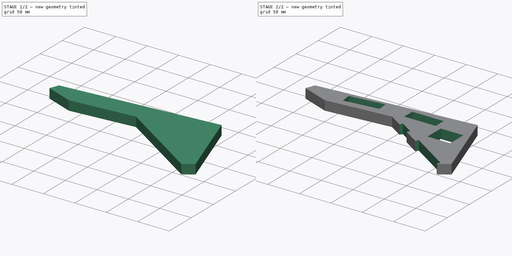
[diagram: build sequence overview — one tinted view per stage of 2, left to right]
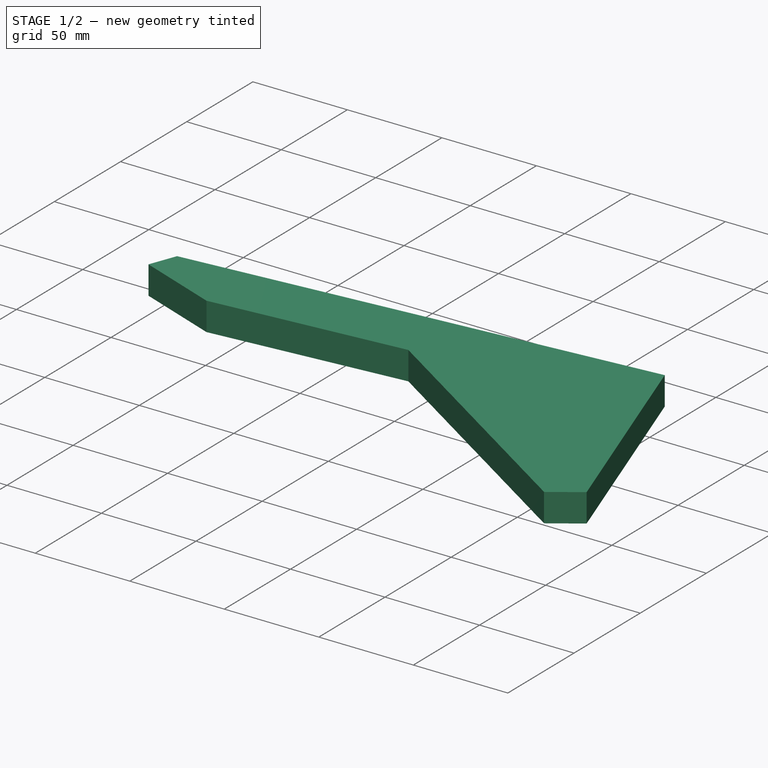
[diagram: stage 1 of 2 — iso view after this stage's code; geometry added in this stage tinted green]
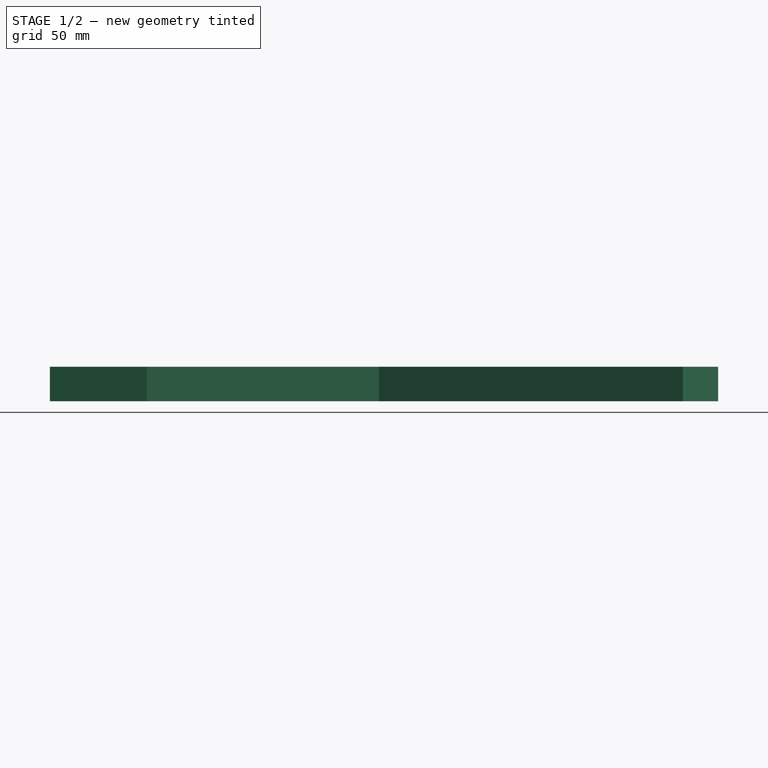
[diagram: stage 1 of 2 — front view after this stage's code; geometry added in this stage tinted green]
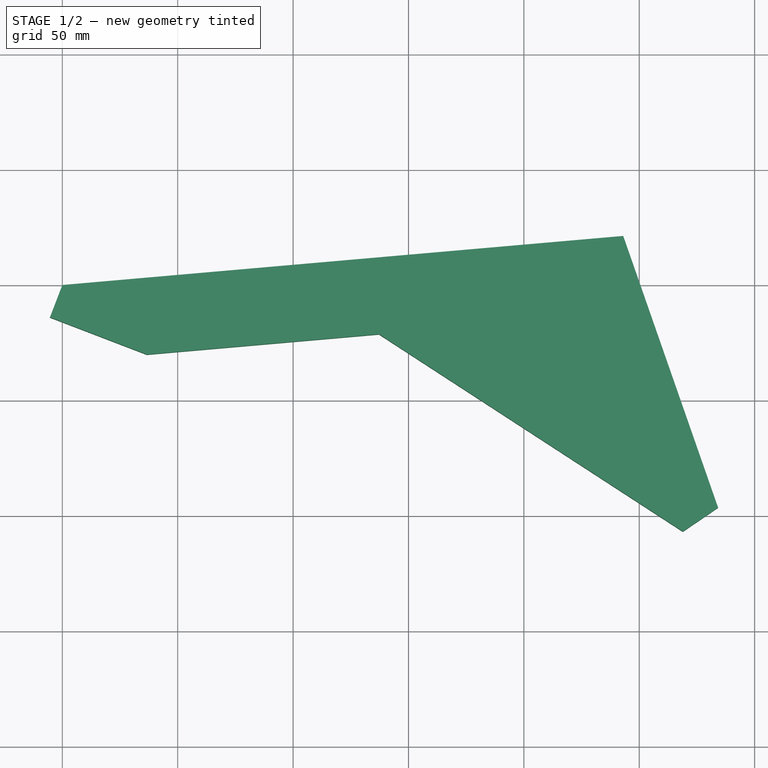
[diagram: stage 1 of 2 — top view after this stage's code; geometry added in this stage tinted green]
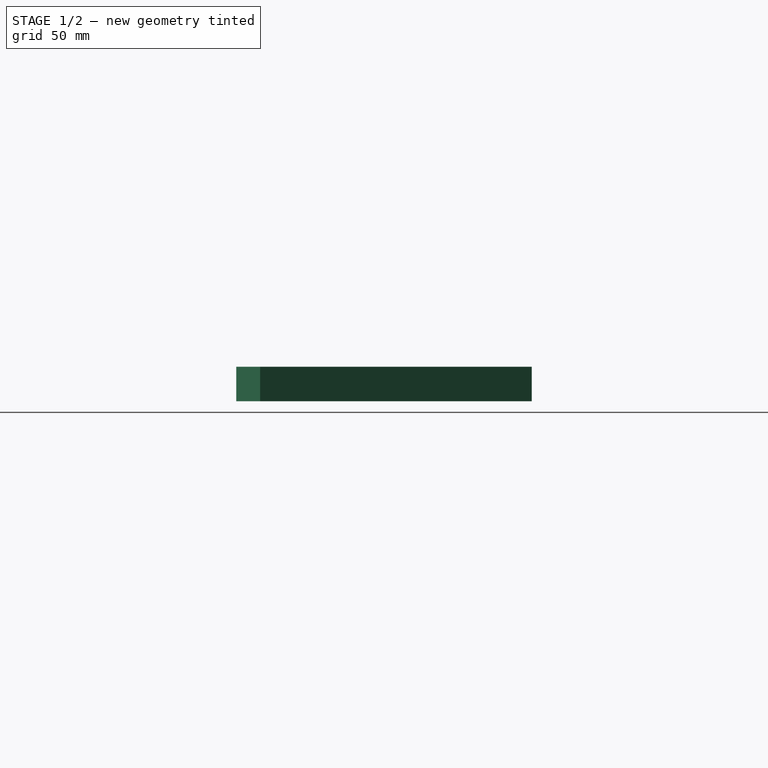
[diagram: stage 1 of 2 — right view after this stage's code; geometry added in this stage tinted green]
FCSTD DOCUMENT  (FreeCAD 2021.717R24301 +3842 (Git))
Label: iMac_MoboMount
License: All rights reserved
LicenseURL: http://en.wikipedia.org/wiki/All_rights_reserved
objects: Sketcher::SketchObject×2, PartDesign::Pad×1, PartDesign::Pocket×1, PartDesign::Body×1, App::Part×1
note: 9 computed .brp shape members not serialized (recipe doc carries the construction recipe); baked Part::Feature solids carry a one-line shape summary decoded from their .brp

FEATURE [Sketcher::SketchObject] Sketch001  label="SupportSketch"
  FullyConstrained = true
  MapMode = 2
  sketch-geometry (7):
    g0: LineSegment StartX=-5.37552 StartY=-14.0037 StartZ=0 EndX=36.6356 EndY=-30.1303 EndZ=0
    g1: LineSegment StartX=36.6356 StartY=-30.1303 StartZ=0 EndX=137.251 EndY=-21.3275 EndZ=0
    g2: LineSegment StartX=243.072 StartY=21.266 StartZ=0 EndX=0 EndY=0 EndZ=0
    g3: LineSegment StartX=0 StartY=0 StartZ=0 EndX=-5.37552 EndY=-14.0037 EndZ=0
    g4: LineSegment StartX=137.251 StartY=-21.3275 StartZ=0 EndX=268.923 EndY=-106.836 EndZ=0
    g5: LineSegment StartX=243.072 StartY=21.266 StartZ=0 EndX=284.17 EndY=-96.4561 EndZ=0
    g6: LineSegment StartX=268.923 StartY=-106.836 StartZ=0 EndX=284.17 EndY=-96.4561 EndZ=0
  constraints (20):
    c: Coincident(g2,g3)
    c: Coincident(g3,g0)
    c: Coincident(g1,g0)
    c: Coincident(g2,g-1)
    c: Distance(g2) = 244
    c: Distance(g1) = 101
    c: Distance(g3) = 15
    c: Angle(g2,g-2) = 1.48353
    c: Distance(g0) = 45
    c: Coincident(g4,g1)
    c: Distance(g4) = 157
    c: Parallel(g1,g2)
    c: Angle(g1,g0) = 2.68781
    c: Angle(g0,g3) = 1.5708
    c: Angle(g1,g4) = 2.47837
    c: Coincident(g5,g2)
    c: Coincident(g6,g4)
    c: Coincident(g6,g5)
    c: Angle(g5,g6) = 1.8326
    c: Distance(g5) = 124.69
FEATURE [PartDesign::Pad] Pad
  ClaimChildren = false
  Direction = (1,1,1)
  Fit = 0
  FitJoin = 0
  InnerFit = 0
  InnerFitJoin = 0
  InnerTaperAngle = 0
  InnerTaperAngleRev = 0
  Length = 15
  Length2 = 100
  Linearize = true
  NewSolid = false
  Profile = -> Sketch001
  Suppress = false
  Type = 0
  _ProfileBasedVersion = 1
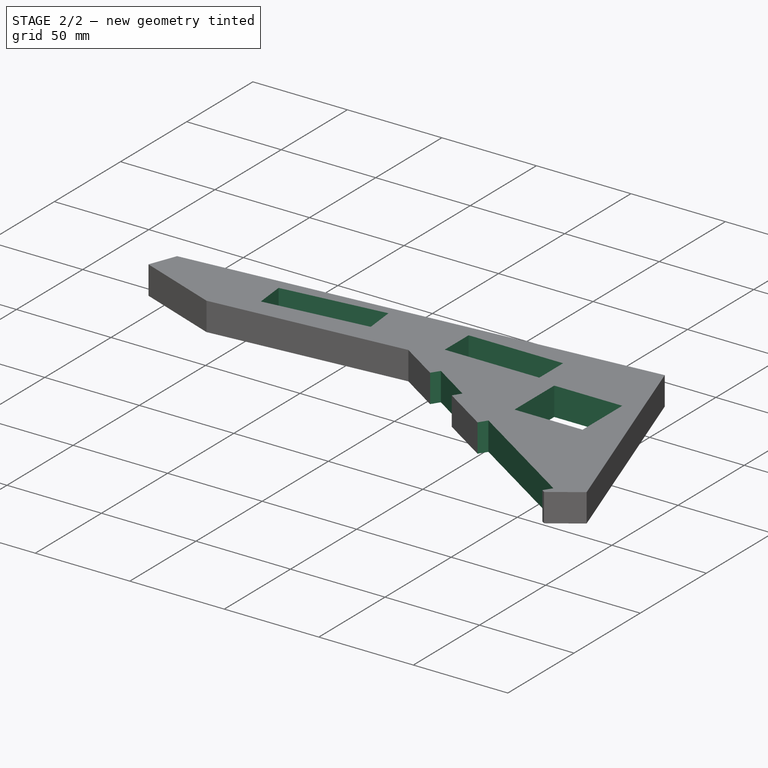
[diagram: stage 2 of 2 — iso view after this stage's code; geometry added in this stage tinted green]
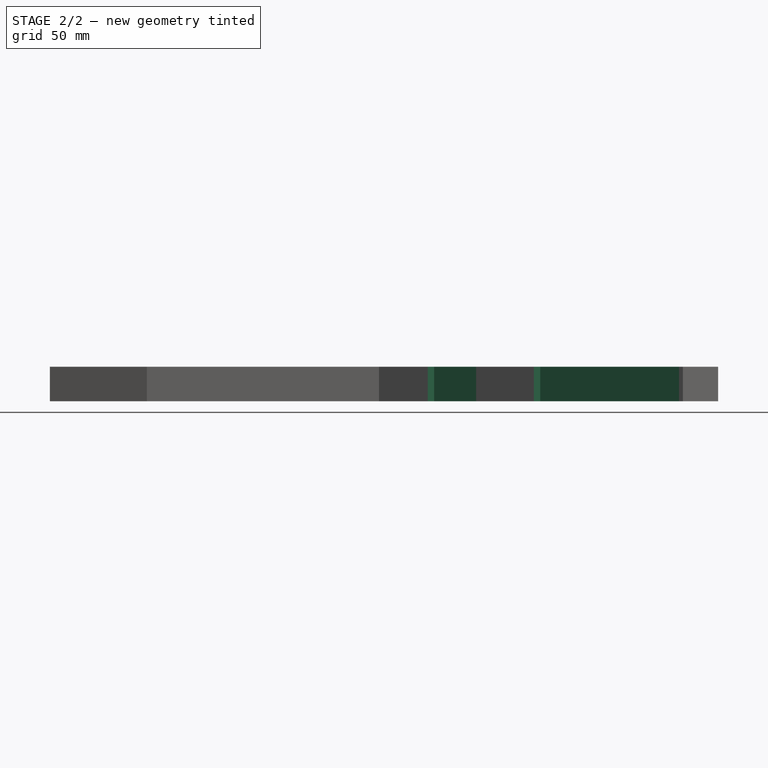
[diagram: stage 2 of 2 — front view after this stage's code; geometry added in this stage tinted green]
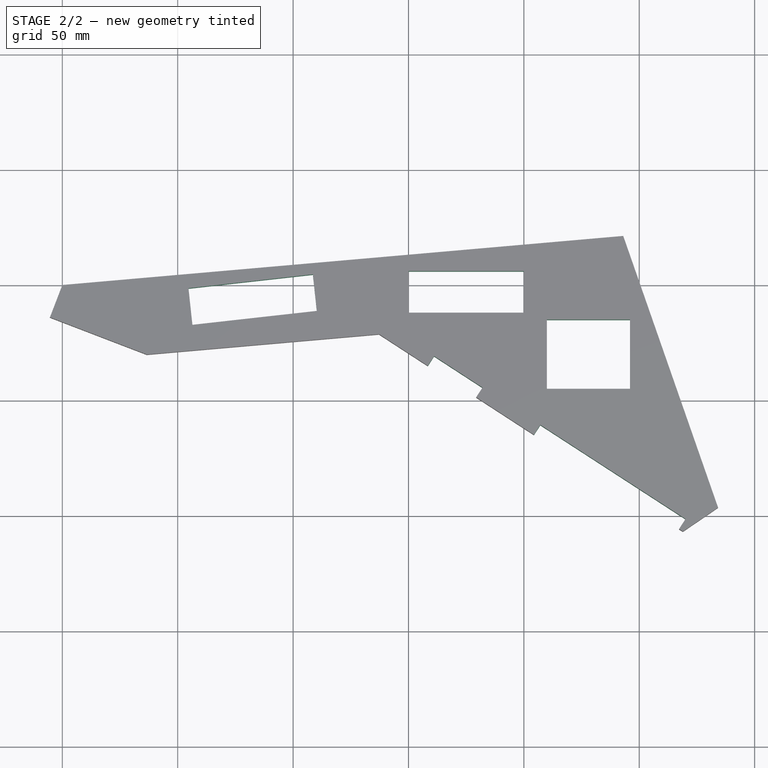
[diagram: stage 2 of 2 — top view after this stage's code; geometry added in this stage tinted green]
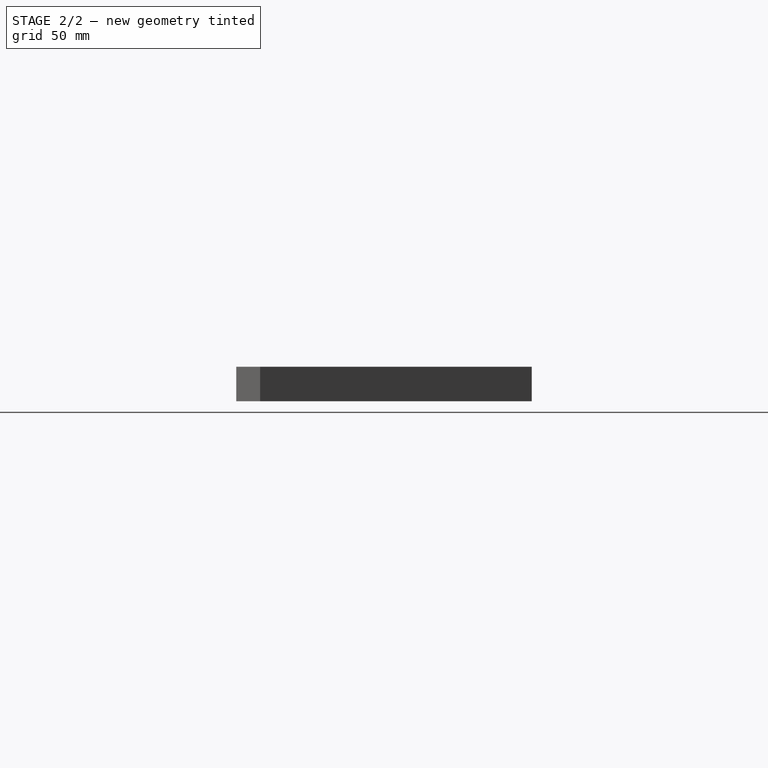
[diagram: stage 2 of 2 — right view after this stage's code; geometry added in this stage tinted green]
FEATURE [Sketcher::SketchObject] Sketch
  FullyConstrained = true
  MapMode = 5
  Placement = pos=(0,0,15) rot=(0,0,1;0rad)
  Support = -> [Pad]
  sketch-geometry (22):
    g0: LineSegment StartX=210 StartY=-15 StartZ=0 EndX=246 EndY=-15 EndZ=0
    g1: LineSegment StartX=246 StartY=-15 StartZ=0 EndX=246 EndY=-45 EndZ=0
    g2: LineSegment StartX=246 StartY=-45 StartZ=0 EndX=210 EndY=-45 EndZ=0
    g3: LineSegment StartX=210 StartY=-45 StartZ=0 EndX=210 EndY=-15 EndZ=0
    g4: LineSegment StartX=150 StartY=6 StartZ=0 EndX=200 EndY=6 EndZ=0
    g5: LineSegment StartX=200 StartY=6 StartZ=0 EndX=200 EndY=-12 EndZ=0
    g6: LineSegment StartX=200 StartY=-12 StartZ=0 EndX=150 EndY=-12 EndZ=0
    g7: LineSegment StartX=150 StartY=-12 StartZ=0 EndX=150 EndY=6 EndZ=0
    g8: LineSegment StartX=54.6689 StartY=-1.42839 StartZ=0 EndX=56.3629 EndY=-17.2479 EndZ=0
    g9: LineSegment StartX=56.3629 StartY=-17.2479 StartZ=0 EndX=110.288 EndY=-11.2284 EndZ=0
    g10: LineSegment StartX=110.288 StartY=-11.2284 StartZ=0 EndX=108.594 EndY=4.5912 EndZ=0
    g11: LineSegment StartX=108.594 StartY=4.5912 StartZ=0 EndX=54.6689 EndY=-1.42839 EndZ=0
    g12: LineSegment StartX=202.787 StartY=-67.3577 StartZ=0 EndX=207.138 EndY=-60.6442 EndZ=0
    g13: LineSegment StartX=202.787 StartY=-67.3577 StartZ=0 EndX=265.726 EndY=-108.146 EndZ=0
    g14: LineSegment StartX=207.138 StartY=-60.6442 StartZ=0 EndX=270.057 EndY=-101.42 EndZ=0
    g15: GeomPoint [constr] X=268.944 Y=-106.842 Z=0
    g16: LineSegment StartX=265.726 StartY=-108.146 StartZ=0 EndX=270.057 EndY=-101.42 EndZ=0
    g17: GeomPoint [constr] X=267.284 Y=-105.726 Z=0
    g18: LineSegment StartX=156.748 StartY=-37.5446 StartZ=0 EndX=177.713 EndY=-51.1646 EndZ=0
    g19: LineSegment StartX=161.107 StartY=-30.836 StartZ=0 EndX=182.071 EndY=-44.4561 EndZ=0
    g20: LineSegment StartX=156.748 StartY=-37.5446 StartZ=0 EndX=161.107 EndY=-30.836 EndZ=0
    g21: LineSegment StartX=177.713 StartY=-51.1646 StartZ=0 EndX=182.071 EndY=-44.4561 EndZ=0
  constraints (64):
    c: Coincident(g0,g1)
    c: Coincident(g1,g2)
    c: Coincident(g2,g3)
    c: Coincident(g3,g0)
    c: Horizontal(g0)
    c: Horizontal(g2)
    c: Vertical(g1)
    c: Vertical(g3)
    c: DistanceX(g0,g0) = 36
    c: DistanceY(g3,g3) = 30
    c: DistanceX(g0) = 210
    c: DistanceY(g0) = -15
    c: Coincident(g4,g5)
    c: Coincident(g5,g6)
    c: Coincident(g6,g7)
    c: Coincident(g7,g4)
    c: Horizontal(g4)
    c: Horizontal(g6)
    c: Vertical(g5)
    c: Vertical(g7)
    c: DistanceX(g4,g4) = 50
    c: DistanceY(g7,g7) = 18
    c: DistanceX(g4) = 150
    c: DistanceY(g4) = 6
    c: Coincident(g8,g9)
    c: Coincident(g9,g10)
    c: Coincident(g10,g11)
    c: Coincident(g11,g8)
    c: Distance(g11) = 54.26
    c: Parallel(g9,g11)
    c: Parallel(g8,g10)
    c: Distance(g8) = 15.91
    c: DistanceX(g8) = 54.6689
    c: DistanceY(g8) = -1.42839
    c: DistanceX(g10) = 108.594
    c: DistanceX(g9) = 110.288
    c: Coincident(g13,g12)
    c: Distance(g13) = 75
    c: Distance(g12) = 8
    c: Coincident(g14,g12)
    c: Parallel(g13,g14)
    c: Angle(g13,g12) = 1.5708
    c: DistanceX(g15) = 268.944
    c: DistanceY(g15) = -106.842
    c: Coincident(g16,g13)
    c: Coincident(g16,g14)
    c: DistanceX(g12) = 207.138
    c: DistanceY(g12) = -60.6442
    c: PointOnObject(g17,g16)
    c: Distance(g17,g15) = 2
    c: DistanceX(g14) = 270.057
    c: DistanceY(g14) = -101.42
    c: Coincident(g18,g20)
    c: Equal(g12,g20) = 8
    c: Coincident(g19,g20)
    c: Parallel(g18,g19)
    c: Angle(g18,g20) = 1.5708
    c: Coincident(g21,g18)
    c: Coincident(g21,g19)
    c: Angle(g19,g21) = 1.5708
    c: Distance(g19) = 25
    c: DistanceX(g18) = 156.748
    c: DistanceY(g18) = -37.5446
    c: DistanceX(g19) = 161.107
FEATURE [PartDesign::Pocket] Pocket
  BaseFeature = -> Pad
  ClaimChildren = false
  Fit = 0
  FitJoin = 0
  InnerFit = 0
  InnerFitJoin = 0
  InnerTaperAngle = 0
  InnerTaperAngleRev = 0
  Length = 0
  Length2 = 100
  Linearize = true
  NewSolid = false
  Profile = -> Sketch
  Suppress = false
  Type = 3
  UpToFace = -> Pad [Face8]
  _ProfileBasedVersion = 1
FEATURE [PartDesign::Body] Body
  AutoGroupSolids = false
  ExportMode = 0
  Group = -> [Sketch001,Pad,Sketch,Pocket]
  Origin = -> Origin001
  Tip = -> Pocket
  _ExportChildren = -> [Pad,Pocket]
  _GroupVersion = 1
FEATURE [App::Part] Part
  ExportMode = 1
  Group = -> [Body]
  Origin = -> Origin
  _ExportChildren = -> [Body]
  _GroupVersion = 1
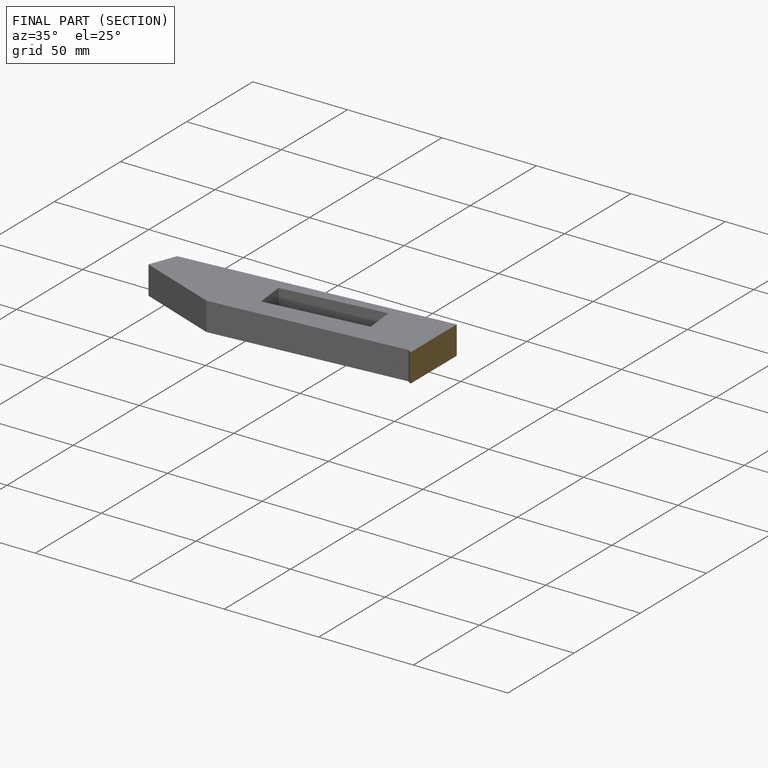
[diagram: finished part — half-section view (interior)]
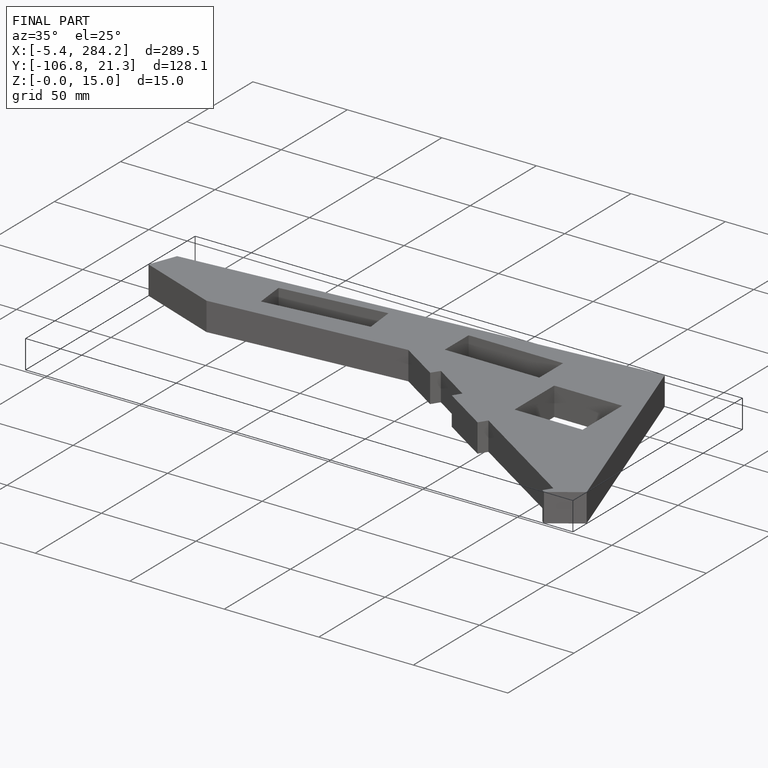
[diagram: finished part — iso view with bounding-box wireframe]
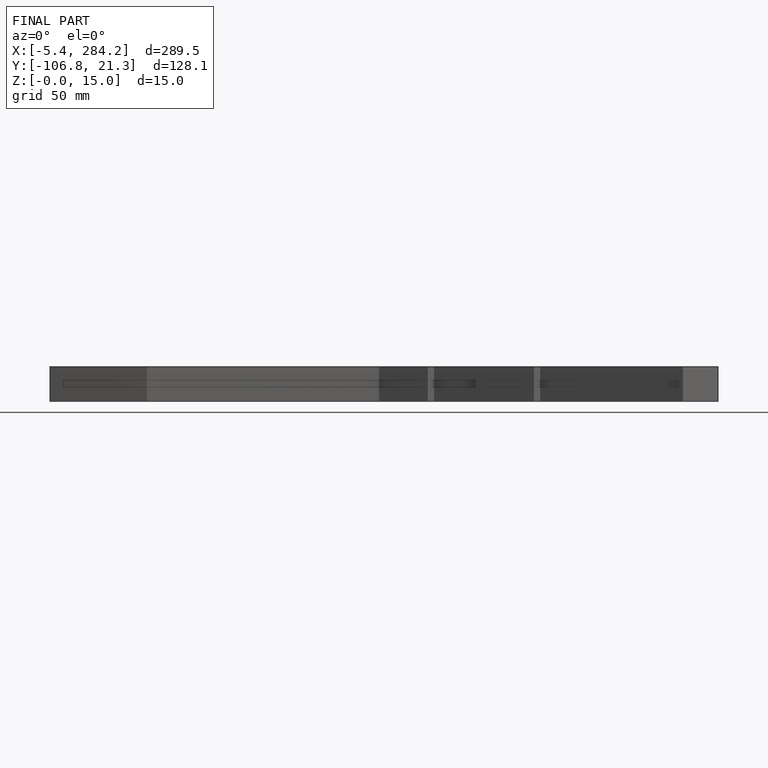
[diagram: finished part — front view with bounding-box wireframe]
